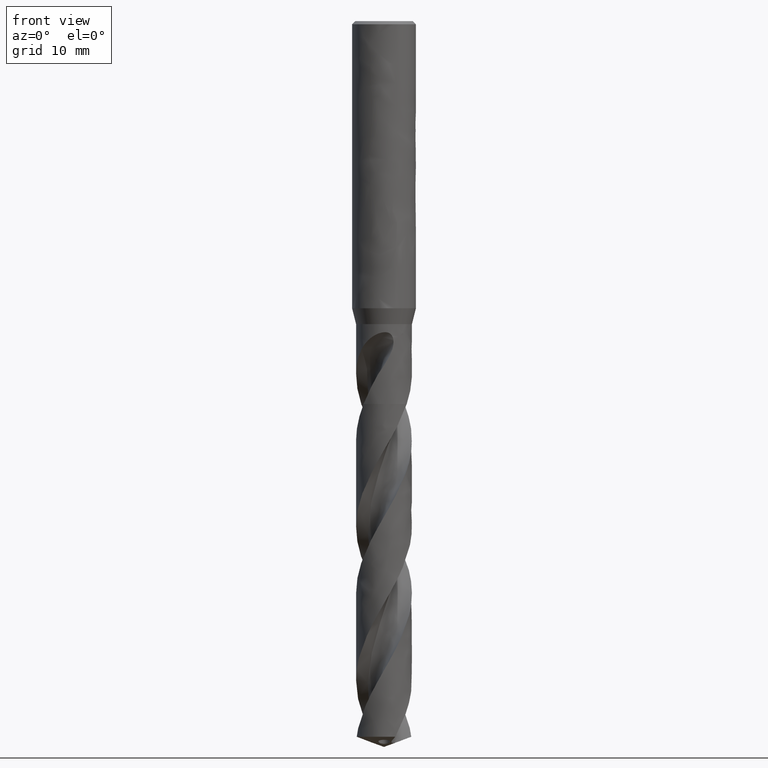
[diagram: clean part render]
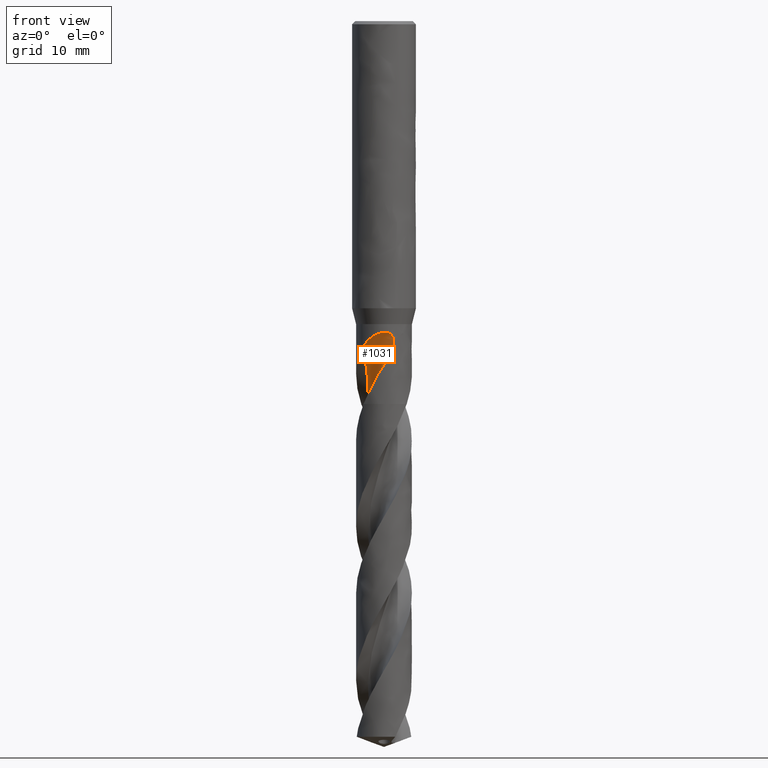
[diagram: same view with one face highlighted and labeled with its STEP entity id]
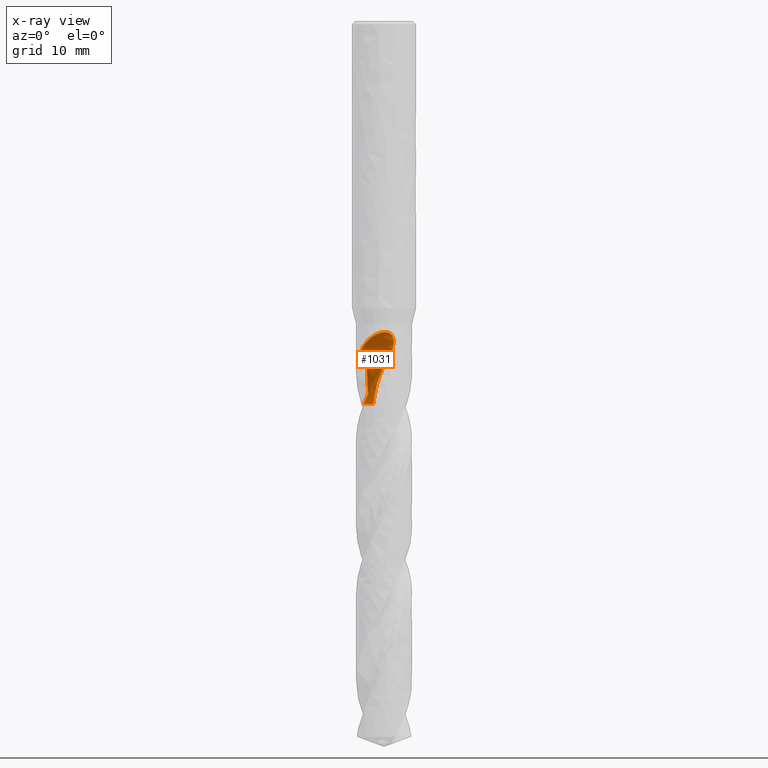
[diagram: x-ray of the same camera — body ghosted, the highlighted face saturated]
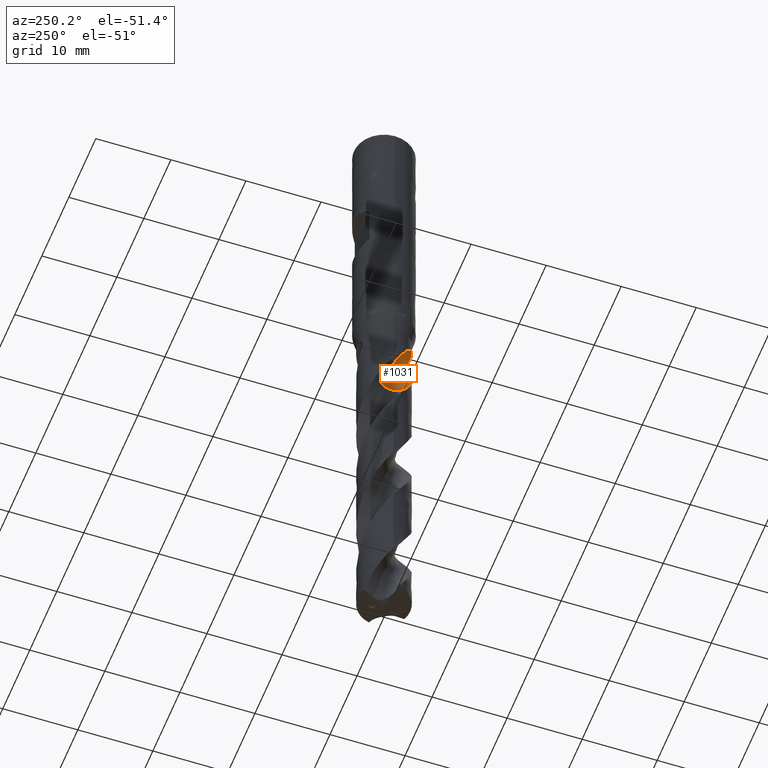
[diagram: same view with one face highlighted and labeled with its STEP entity id]
A machine part, front view. The second image highlights one B-rep face of the part: STEP entity #1031.
The next image is the same camera in x-ray: the body ghosted, the highlighted face saturated — about 0% of this face is hidden behind the body in this view.
A second angle (auxiliary view) of the same face is appended — the face is thin or edge-on in the first view.
In plain terms, the highlighted face is a freeform B-spline surface patch.
Its self-contained STEP definition (entity closure, byte-faithful):
#1031 = ADVANCED_FACE('', (#1032), #1370, .T.);
#1032 = FACE_OUTER_BOUND('', #1033, .T.);
#1033 = EDGE_LOOP('', (#1034, #1108, #1141, #1152, #1275, #1283, #1352));
#1034 = ORIENTED_EDGE('', *, *, #1035, .T.);
#1035 = EDGE_CURVE('', #1036, #1038, #1040, .T.);
#1036 = VERTEX_POINT('', #1037);
#1037 = CARTESIAN_POINT('', (-1.87105878399884, 0.973985460120105, -48.));
#1038 = VERTEX_POINT('', #1039);
#1039 = CARTESIAN_POINT('', (-2.55478292554754, -2.39229684682539, -48.));
#1040 = B_SPLINE_CURVE_WITH_KNOTS('', 3, (#1041, #1042, #1043, #1044, #1045, #1046, #1047, #1048, #1049, #1050, #1051, #1052, #1053, #1054, #1055, #1056, #1057, #1058, #1059, #1060, #1061, #1062, #1063, #1064, #1065, #1066, #1067, #1068, #1069, #1070, #1071, #1072, #1073, #1074, #1075, #1076, #1077, #1078, #1079, #1080, #1081, #1082, #1083, #1084, #1085, #1086, #1087, #1088, #1089, #1090, #1091, #1092, #1093, #1094, #1095, #1096, #1097, #1098, #1099, #1100, #1101, #1102, #1103, #1104, #1105, #1106, #1107), .UNSPECIFIED., .F., .U., (4, 3, 3, 3, 3, 3, 3, 3, 3, 3, 3, 3, 3, 3, 3, 3, 3, 3, 3, 3, 3, 3, 4), (0., 0.198185660012881, 0.396141605212709, 0.593873296694534, 0.791385044629832, 0.988680093004827, 1.18576068233785, 1.38262809298229, 1.57928267078664, 1.77572383617321, 1.97195007706195, 2.01083276721158, 2.04973939964569, 2.24790031997675, 2.44583216438928, 2.64354026674945, 2.84102882016284, 3.03830095921687, 3.2353588205243, 3.43220358407801, 3.62883549710774, 3.82525388143031, 4.00806983014479), .UNSPECIFIED.);
#1041 = CARTESIAN_POINT('', (-1.87105878399883, 0.973985460120107, -48.));
#1042 = CARTESIAN_POINT('', (-1.82612948131788, 0.925554781504893, -48.));
#1043 = CARTESIAN_POINT('', (-1.78342599912703, 0.87496037252041, -48.));
#1044 = CARTESIAN_POINT('', (-1.74322934676003, 0.822535168572179, -48.));
#1045 = CARTESIAN_POINT('', (-1.70307928588953, 0.770170730099732, -48.));
#1046 = CARTESIAN_POINT('', (-1.66534231888975, 0.71586508683488, -48.));
#1047 = CARTESIAN_POINT('', (-1.63026619866022, 0.659974769300595, -48.));
#1048 = CARTESIAN_POINT('', (-1.59522981429397, 0.604147766922087, -48.));
#1049 = CARTESIAN_POINT('', (-1.56277169465028, 0.546617721774219, -48.));
#1050 = CARTESIAN_POINT('', (-1.53310445389079, 0.487761479541577, -48.));
#1051 = CARTESIAN_POINT('', (-1.50347021299135, 0.428970705067567, -48.));
#1052 = CARTESIAN_POINT('', (-1.47655603486923, 0.368728535440033, -48.));
#1053 = CARTESIAN_POINT('', (-1.45253782721882, 0.307428705928024, -48.));
#1054 = CARTESIAN_POINT('', (-1.42854597108973, 0.246196131383079, -48.));
#1055 = CARTESIAN_POINT('', (-1.40739153750378, 0.183775038910559, -48.));
#1056 = CARTESIAN_POINT('', (-1.38921248645845, 0.120572511674599, -48.));
#1057 = CARTESIAN_POINT('', (-1.37105319597934, 0.0574386853693143, -48.));
#1058 = CARTESIAN_POINT('', (-1.35582339795609, -0.00661189344720524, -48.));
#1059 = CARTESIAN_POINT('', (-1.34362219903751, -0.0711624209400119, -48.));
#1060 = CARTESIAN_POINT('', (-1.33143419794624, -0.135643125235897, -48.));
#1061 = CARTESIAN_POINT('', (-1.32224183890544, -0.200762334896169, -48.));
#1062 = CARTESIAN_POINT('', (-1.31610481130052, -0.266097206819748, -48.));
#1063 = CARTESIAN_POINT('', (-1.30997441842001, -0.331361445385052, -48.));
#1064 = CARTESIAN_POINT('', (-1.30687949266754, -0.396981911024945, -48.));
#1065 = CARTESIAN_POINT('', (-1.30684008718142, -0.462533425115666, -48.));
#1066 = CARTESIAN_POINT('', (-1.3068007244587, -0.52801380174665, -48.));
#1067 = CARTESIAN_POINT('', (-1.30981015464197, -0.593566569497235, -48.));
#1068 = CARTESIAN_POINT('', (-1.31584892077979, -0.658767908261805, -48.));
#1069 = CARTESIAN_POINT('', (-1.32188107995833, -0.723897910832842, -48.));
#1070 = CARTESIAN_POINT('', (-1.33094891429165, -0.788817385899805, -48.));
#1071 = CARTESIAN_POINT('', (-1.34299392527057, -0.853107524255361, -48.));
#1072 = CARTESIAN_POINT('', (-1.34538067246412, -0.865846766051125, -48.));
#1073 = CARTESIAN_POINT('', (-1.347884683431, -0.878564595572162, -48.));
#1074 = CARTESIAN_POINT('', (-1.35050532291457, -0.891257786360692, -48.));
#1075 = CARTESIAN_POINT('', (-1.35312757607497, -0.903958793068947, -48.));
#1076 = CARTESIAN_POINT('', (-1.35586682339431, -0.916636205745398, -48.));
#1077 = CARTESIAN_POINT('', (-1.3587223690815, -0.929286804224075, -48.));
#1078 = CARTESIAN_POINT('', (-1.37326635621222, -0.993719372154971, -48.));
#1079 = CARTESIAN_POINT('', (-1.39085271744433, -1.05753945061112, -48.));
#1080 = CARTESIAN_POINT('', (-1.41136575495431, -1.12032717762797, -48.));
#1081 = CARTESIAN_POINT('', (-1.43185507919679, -1.18304232143207, -48.));
#1082 = CARTESIAN_POINT('', (-1.45530915614775, -1.24486479624366, -48.));
#1083 = CARTESIAN_POINT('', (-1.48157404118666, -1.30538882026863, -48.));
#1084 = CARTESIAN_POINT('', (-1.5078092364134, -1.36584442796882, -48.));
#1085 = CARTESIAN_POINT('', (-1.53690617682193, -1.42513657030635, -48.));
#1086 = CARTESIAN_POINT('', (-1.56867431076911, -1.48287695163951, -48.));
#1087 = CARTESIAN_POINT('', (-1.6004071671517, -1.54055321400255, -48.));
#1088 = CARTESIAN_POINT('', (-1.63487443046013, -1.59680686149634, -48.));
#1089 = CARTESIAN_POINT('', (-1.67185087980195, -1.65127031353934, -48.));
#1090 = CARTESIAN_POINT('', (-1.70878680915182, -1.70567408276589, -48.));
#1091 = CARTESIAN_POINT('', (-1.74830673434617, -1.7584098886994, -48.));
#1092 = CARTESIAN_POINT('', (-1.79015298340739, -1.80913389112922, -48.));
#1093 = CARTESIAN_POINT('', (-1.83195377891398, -1.85980279695497, -48.));
#1094 = CARTESIAN_POINT('', (-1.87616653569077, -1.90857421820115, -48.));
#1095 = CARTESIAN_POINT('', (-1.9225036091341, -1.95513085196337, -48.));
#1096 = CARTESIAN_POINT('', (-1.96879057381141, -2.00163713952773, -48.));
#1097 = CARTESIAN_POINT('', (-2.0172974696841, -2.04603412881639, -48.));
#1098 = CARTESIAN_POINT('', (-2.06770939589123, -2.08803359998146, -48.));
#1099 = CARTESIAN_POINT('', (-2.11806681109834, -2.12998765663163, -48.));
#1100 = CARTESIAN_POINT('', (-2.17043392425201, -2.16964002767551, -48.));
#1101 = CARTESIAN_POINT('', (-2.22447150805107, -2.20673385024622, -48.));
#1102 = CARTESIAN_POINT('', (-2.27845041075799, -2.24378739148184, -48.));
#1103 = CARTESIAN_POINT('', (-2.33421251591738, -2.27836782864358, -48.));
#1104 = CARTESIAN_POINT('', (-2.39139738674109, -2.31025163965196, -48.));
#1105 = CARTESIAN_POINT('', (-2.44462207061072, -2.33992742167325, -48.));
#1106 = CARTESIAN_POINT('', (-2.49918595568339, -2.36732663012836, -48.));
#1107 = CARTESIAN_POINT('', (-2.55478295803653, -2.3922967744874, -48.));
#1108 = ORIENTED_EDGE('', *, *, #1109, .F.);
#1109 = EDGE_CURVE('', #1110, #1038, #1112, .T.);
#1110 = VERTEX_POINT('', #1111);
#1111 = CARTESIAN_POINT('', (-1.59928233939166, -3.11324525196939, -45.867325914511));
#1112 = B_SPLINE_CURVE_WITH_KNOTS('', 3, (#1113, #1114, #1115, #1116, #1117, #1118, #1119, #1120, #1121, #1122, #1123, #1124, #1125, #1126, #1127, #1128, #1129, #1130, #1131, #1132, #1133, #1134, #1135, #1136, #1137, #1138, #1139, #1140), .UNSPECIFIED., .F., .U., (4, 3, 3, 3, 3, 3, 3, 3, 3, 4), (0., 0.197093816770112, 0.394180000558387, 0.837666373944045, 1.13329458139888, 1.57669277679801, 1.77374746256078, 2.06933356528086, 2.36491962118588, 2.4485456006945), .UNSPECIFIED.);
#1113 = CARTESIAN_POINT('', (-1.59928233939166, -3.11324525196939, -45.867325914511));
#1114 = CARTESIAN_POINT('', (-1.62714405050113, -3.09893261710889, -45.9250761761223));
#1115 = CARTESIAN_POINT('', (-1.6548872512009, -3.08420822305507, -45.9827832279353));
#1116 = CARTESIAN_POINT('', (-1.68250783582263, -3.06906620690976, -46.0404377319309));
#1117 = CARTESIAN_POINT('', (-1.71012735076382, -3.05392477717926, -46.0980900031027));
#1118 = CARTESIAN_POINT('', (-1.73762814422913, -3.03836345164842, -46.1556905721649));
#1119 = CARTESIAN_POINT('', (-1.76499062264873, -3.02238450597571, -46.2132392727676));
#1120 = CARTESIAN_POINT('', (-1.82656209401166, -2.98642843573931, -46.3427362473033));
#1121 = CARTESIAN_POINT('', (-1.88744090991785, -2.94835077017312, -46.4719934139944));
#1122 = CARTESIAN_POINT('', (-1.94739054795253, -2.90820736085739, -46.6010201518225));
#1123 = CARTESIAN_POINT('', (-1.98735300247951, -2.88144774692262, -46.6870294308149));
#1124 = CARTESIAN_POINT('', (-2.02690688203095, -2.85376813342415, -46.7729483507401));
#1125 = CARTESIAN_POINT('', (-2.0659877848012, -2.82518928092479, -46.8587772678428));
#1126 = CARTESIAN_POINT('', (-2.12460330702109, -2.78232526691919, -46.9875078354841));
#1127 = CARTESIAN_POINT('', (-2.18216663618878, -2.73742888590566, -47.1160618124492));
#1128 = CARTESIAN_POINT('', (-2.23848989647738, -2.69056926752889, -47.2444227438227));
#1129 = CARTESIAN_POINT('', (-2.26352103659583, -2.66974395188708, -47.3014688104474));
#1130 = CARTESIAN_POINT('', (-2.28831013684844, -2.64852881903253, -47.3584806514927));
#1131 = CARTESIAN_POINT('', (-2.31284052764313, -2.62693142158135, -47.4154571186994));
#1132 = CARTESIAN_POINT('', (-2.34963662099731, -2.59453487888164, -47.5009229974894));
#1133 = CARTESIAN_POINT('', (-2.38585349885642, -2.56127461552716, -47.5863172080262));
#1134 = CARTESIAN_POINT('', (-2.42140769237691, -2.52720889269129, -47.6716596403394));
#1135 = CARTESIAN_POINT('', (-2.45696188026632, -2.49314317525076, -47.7570020591361));
#1136 = CARTESIAN_POINT('', (-2.49185697159016, -2.45826787792066, -47.8423022498849));
#1137 = CARTESIAN_POINT('', (-2.52599357267561, -2.42267547781404, -47.9276004054819));
#1138 = CARTESIAN_POINT('', (-2.53565135810167, -2.41260582377416, -47.9517326054609));
#1139 = CARTESIAN_POINT('', (-2.54524872461322, -2.40247861577604, -47.9758657003163));
#1140 = CARTESIAN_POINT('', (-2.55478292554754, -2.39229684682539, -48.));
#1141 = ORIENTED_EDGE('', *, *, #1142, .T.);
#1142 = EDGE_CURVE('', #1110, #1143, #1145, .T.);
#1143 = VERTEX_POINT('', #1144);
#1144 = CARTESIAN_POINT('', (-0.723210420443898, -3.42446589817468, -44.2361576450141));
#1145 = (
   BOUNDED_CURVE ()
   B_SPLINE_CURVE (3, (#1146, #1147, #1148, #1149, #1150, #1151), .UNSPECIFIED., .F., .U.)
   B_SPLINE_CURVE_WITH_KNOTS ((4, 1, 1, 4), (45.182674085489, 45.6240740740741, 46.2666666666667, 46.8138423549859), .UNSPECIFIED.)
   CURVE ()
   GEOMETRIC_REPRESENTATION_ITEM ()
   RATIONAL_B_SPLINE_CURVE ((1., 1., 1., 1., 1., 1.))
   REPRESENTATION_ITEM ('')
);
#1146 = CARTESIAN_POINT('', (-1.59928233939165, -3.11324525196939, -45.867325914511));
#1147 = CARTESIAN_POINT('', (-1.51893539192548, -3.14103764636793, -45.7201925849826));
#1148 = CARTESIAN_POINT('', (-1.3182707190317, -3.19819180584944, -45.3588617245901));
#1149 = CARTESIAN_POINT('', (-1.01590630037895, -3.25151255243485, -44.8151389680911));
#1150 = CARTESIAN_POINT('', (-0.816284106162359, -3.36155477628375, -44.4185495411205));
#1151 = CARTESIAN_POINT('', (-0.723210420443898, -3.42446589817468, -44.2361576450141));
#1152 = ORIENTED_EDGE('', *, *, #1153, .F.);
#1153 = EDGE_CURVE('', #1154, #1143, #1156, .T.);
#1154 = VERTEX_POINT('', #1155);
#1155 = CARTESIAN_POINT('', (0.120032014846111, -3.4979411537949, -39.));
#1156 = B_SPLINE_CURVE_WITH_KNOTS('', 3, (#1157, #1158, #1159, #1160, #1161, #1162, #1163, #1164, #1165, #1166, #1167, #1168, #1169, #1170, #1171, #1172, #1173, #1174, #1175, #1176, #1177, #1178, #1179, #1180, #1181, #1182, #1183, #1184, #1185, #1186, #1187, #1188, #1189, #1190, #1191, #1192, #1193, #1194, #1195, #1196, #1197, #1198, #1199, #1200, #1201, #1202, #1203, #1204, #1205, #1206, #1207, #1208, #1209, #1210, #1211, #1212, #1213, #1214, #1215, #1216, #1217, #1218, #1219, #1220, #1221, #1222, #1223, #1224, #1225, #1226, #1227, #1228, #1229, #1230, #1231, #1232, #1233, #1234, #1235, #1236, #1237, #1238, #1239, #1240, #1241, #1242, #1243, #1244, #1245, #1246, #1247, #1248, #1249, #1250, #1251, #1252, #1253, #1254, #1255, #1256, #1257, #1258, #1259, #1260, #1261, #1262, #1263, #1264, #1265, #1266, #1267, #1268, #1269, #1270, #1271, #1272, #1273, #1274), .UNSPECIFIED., .F., .U., (4, 3, 3, 3, 3, 3, 3, 3, 3, 3, 3, 3, 3, 3, 3, 3, 3, 3, 3, 3, 3, 3, 3, 3, 3, 3, 3, 3, 3, 3, 3, 3, 3, 3, 3, 3, 3, 3, 3, 4), (0., 0.131917330217055, 0.263598794659899, 0.394995037223465, 0.526069242722832, 0.61332751385161, 0.700496570653888, 0.787595407274289, 0.874649723910369, 0.961688489422414, 1.04873968997006, 1.13582668400651, 1.22296616414469, 1.35354804115679, 1.48433915272312, 1.54263777435659, 1.58153245398859, 1.77824311970316, 1.97533877144389, 2.17271792988226, 2.37029293949605, 2.56799392280355, 2.76576691186751, 2.96357319501825, 3.16138212838387, 3.35916941590668, 3.55691999776634, 3.75462195539595, 3.9522648770393, 4.24900858100944, 4.54551555067818, 4.84177804021572, 5.03903426239406, 5.07796360736854, 5.11690070883443, 5.41363596447097, 5.71020385901692, 6.00658920824824, 6.30281517311314, 6.38772883873351), .UNSPECIFIED.);
#1157 = CARTESIAN_POINT('', (0.120032014848795, -3.4979411537948, -39.));
#1158 = CARTESIAN_POINT('', (0.163978572974783, -3.49643312559032, -39.0000407293484));
#1159 = CARTESIAN_POINT('', (0.207951668955339, -3.49409132834699, -39.00189613228));
#1160 = CARTESIAN_POINT('', (0.251634535186498, -3.49094257482151, -39.005829111829));
#1161 = CARTESIAN_POINT('', (0.295239297251612, -3.48779945120977, -39.0097550592824));
#1162 = CARTESIAN_POINT('', (0.338669771925236, -3.48384267820905, -39.0157646427837));
#1163 = CARTESIAN_POINT('', (0.381506169387032, -3.4791454471924, -39.024110098881));
#1164 = CARTESIAN_POINT('', (0.424249783268107, -3.47445839037197, -39.0324374787314));
#1165 = CARTESIAN_POINT('', (0.466541655431482, -3.46901745249328, -39.0431231434028));
#1166 = CARTESIAN_POINT('', (0.507851464830663, -3.46295926768845, -39.0563567494381));
#1167 = CARTESIAN_POINT('', (0.549060028642588, -3.45691593079716, -39.0695579214285));
#1168 = CARTESIAN_POINT('', (0.589454042232267, -3.45023371043598, -39.085354126488));
#1169 = CARTESIAN_POINT('', (0.628417523557257, -3.4431223353355, -39.1037990190429));
#1170 = CARTESIAN_POINT('', (0.654356158886948, -3.43838817506153, -39.1160780897369));
#1171 = CARTESIAN_POINT('', (0.679726786272182, -3.43345349906144, -39.1295585630908));
#1172 = CARTESIAN_POINT('', (0.704341062317732, -3.42839666140514, -39.1442066503737));
#1173 = CARTESIAN_POINT('', (0.728930172312758, -3.42334499394487, -39.1588397612054));
#1174 = CARTESIAN_POINT('', (0.752819424781753, -3.41816030074563, -39.1746716245931));
#1175 = CARTESIAN_POINT('', (0.775831655602053, -3.41292912937945, -39.1916228394728));
#1176 = CARTESIAN_POINT('', (0.798825348616705, -3.40770217205227, -39.2085603990782));
#1177 = CARTESIAN_POINT('', (0.820996898445579, -3.40241694582499, -39.2266552212643));
#1178 = CARTESIAN_POINT('', (0.842195073823296, -3.39716167669853, -39.2457845556437));
#1179 = CARTESIAN_POINT('', (0.863382413896295, -3.39190909376753, -39.2649041121926));
#1180 = CARTESIAN_POINT('', (0.883646892308865, -3.38667450919417, -39.2851014578162));
#1181 = CARTESIAN_POINT('', (0.902874616900423, -3.38154068823058, -39.3062199080148));
#1182 = CARTESIAN_POINT('', (0.922098906708486, -3.37640778435749, -39.3273345856762));
#1183 = CARTESIAN_POINT('', (0.940330390952768, -3.37136431020877, -39.3494168502961));
#1184 = CARTESIAN_POINT('', (0.95749766321326, -3.36648157947488, -39.3722902701815));
#1185 = CARTESIAN_POINT('', (0.974667388123907, -3.36159815115607, -39.3951669579418));
#1186 = CARTESIAN_POINT('', (0.990809056760843, -3.35686541194018, -39.4188820068771));
#1187 = CARTESIAN_POINT('', (1.00589210183776, -3.35233964261727, -39.4432543135339));
#1188 = CARTESIAN_POINT('', (1.02098134872236, -3.34781201240017, -39.4676366415332));
#1189 = CARTESIAN_POINT('', (1.0350401785232, -3.34348297300647, -39.49272185901));
#1190 = CARTESIAN_POINT('', (1.04807217619559, -3.33939286599937, -39.5183367138197));
#1191 = CARTESIAN_POINT('', (1.06111202806898, -3.33530029394253, -39.5439670063409));
#1192 = CARTESIAN_POINT('', (1.07314600600743, -3.33144006106073, -39.5701692638012));
#1193 = CARTESIAN_POINT('', (1.08420286228906, -3.32783775947787, -39.5967863284424));
#1194 = CARTESIAN_POINT('', (1.10077198853148, -3.32243957140621, -39.6366730279716));
#1195 = CARTESIAN_POINT('', (1.11518696957829, -3.31760910418266, -39.6775891984801));
#1196 = CARTESIAN_POINT('', (1.12760781113489, -3.31338205226436, -39.7190919683314));
#1197 = CARTESIAN_POINT('', (1.1400485549115, -3.30914822723677, -39.7606612390919));
#1198 = CARTESIAN_POINT('', (1.15052294679162, -3.3055078188578, -39.8029223610356));
#1199 = CARTESIAN_POINT('', (1.15922169678995, -3.30245439903285, -39.8455335101339));
#1200 = CARTESIAN_POINT('', (1.16309906375139, -3.30109337254617, -39.8645269358254));
#1201 = CARTESIAN_POINT('', (1.16662660917158, -3.29984754870377, -39.883603363694));
#1202 = CARTESIAN_POINT('', (1.16982134592088, -3.29871460096624, -39.9027383231577));
#1203 = CARTESIAN_POINT('', (1.17195275587348, -3.29795874022621, -39.9155044589128));
#1204 = CARTESIAN_POINT('', (1.17393644709481, -3.29725295334373, -39.9282991334245));
#1205 = CARTESIAN_POINT('', (1.17577738027917, -3.29659635867418, -39.9411158531458));
#1206 = CARTESIAN_POINT('', (1.18508793883516, -3.29327561723154, -40.0059366844911));
#1207 = CARTESIAN_POINT('', (1.19076736165235, -3.29121269107379, -40.0714221779842));
#1208 = CARTESIAN_POINT('', (1.19340752109279, -3.29025507956437, -40.1369322271292));
#1209 = CARTESIAN_POINT('', (1.19605284763735, -3.28929559389603, -40.2025704871844));
#1210 = CARTESIAN_POINT('', (1.19565522114364, -3.28944044430511, -40.2684028777341));
#1211 = CARTESIAN_POINT('', (1.19270542858238, -3.29050965059063, -40.3340264639674));
#1212 = CARTESIAN_POINT('', (1.18975139297497, -3.29158039484588, -40.3997444446028));
#1213 = CARTESIAN_POINT('', (1.18423317931475, -3.29357837211198, -40.4653725553408));
#1214 = CARTESIAN_POINT('', (1.17654050015391, -3.29632408168517, -40.5306566235711));
#1215 = CARTESIAN_POINT('', (1.1688401878657, -3.29907251571241, -40.5960054704821));
#1216 = CARTESIAN_POINT('', (1.15895003847352, -3.30257325451006, -40.6610953581646));
#1217 = CARTESIAN_POINT('', (1.14717676430096, -3.30665774936687, -40.7257639549374));
#1218 = CARTESIAN_POINT('', (1.13539598349668, -3.31074484849485, -40.7904737843642));
#1219 = CARTESIAN_POINT('', (1.12171731504971, -3.31542023766747, -40.8548248463748));
#1220 = CARTESIAN_POINT('', (1.10638767669807, -3.32052801657367, -40.918713546336));
#1221 = CARTESIAN_POINT('', (1.09105245505499, -3.32563765581196, -40.9826255155501));
#1222 = CARTESIAN_POINT('', (1.07405358054217, -3.33118354276062, -41.0461224455169));
#1223 = CARTESIAN_POINT('', (1.05559310987832, -3.33702310246384, -41.1091393306363));
#1224 = CARTESIAN_POINT('', (1.0371295314872, -3.34286364522753, -41.1721668243309));
#1225 = CARTESIAN_POINT('', (1.0171925523887, -3.3490013856445, -41.2347506083941));
#1226 = CARTESIAN_POINT('', (0.99595074337014, -3.3553065607751, -41.2968514211456));
#1227 = CARTESIAN_POINT('', (0.974708649753144, -3.36161182038265, -41.3589530659258));
#1228 = CARTESIAN_POINT('', (0.952151444833926, -3.36808746080764, -41.420600306122));
#1229 = CARTESIAN_POINT('', (0.928425717125101, -3.37461489473699, -41.4817728455114));
#1230 = CARTESIAN_POINT('', (0.904702585676031, -3.38114161438207, -41.54293869091));
#1231 = CARTESIAN_POINT('', (0.879802691812217, -3.38772239682055, -41.6036529718584));
#1232 = CARTESIAN_POINT('', (0.853856361724754, -3.39424944774879, -41.6639093511022));
#1233 = CARTESIAN_POINT('', (0.827914846796365, -3.40077528737707, -41.7241545478763));
#1234 = CARTESIAN_POINT('', (0.800918716397917, -3.40724955967666, -41.7839602252999));
#1235 = CARTESIAN_POINT('', (0.772984171604875, -3.41357517427824, -41.843329243492));
#1236 = CARTESIAN_POINT('', (0.745056495543744, -3.41989923349558, -41.9026836636346));
#1237 = CARTESIAN_POINT('', (0.71618353254251, -3.42607634304849, -41.9616166792043));
#1238 = CARTESIAN_POINT('', (0.686474147844868, -3.43201882925208, -42.0201396261929));
#1239 = CARTESIAN_POINT('', (0.656773634697353, -3.43795954096372, -42.0786450975836));
#1240 = CARTESIAN_POINT('', (0.62623066692973, -3.44366704203281, -42.1367532175925));
#1241 = CARTESIAN_POINT('', (0.594950779382482, -3.4490627089272, -42.1944832629183));
#1242 = CARTESIAN_POINT('', (0.547986741341746, -3.45716383476726, -42.2811599186664));
#1243 = CARTESIAN_POINT('', (0.499347661069798, -3.46456225133288, -42.3670127958843));
#1244 = CARTESIAN_POINT('', (0.449369515138695, -3.47103256090518, -42.4521269062537));
#1245 = CARTESIAN_POINT('', (0.399431240454411, -3.47749770863514, -42.5371731148305));
#1246 = CARTESIAN_POINT('', (0.348138567595743, -3.48303838406564, -42.6215094658222));
#1247 = CARTESIAN_POINT('', (0.295820758732069, -3.48747617607679, -42.705245001198));
#1248 = CARTESIAN_POINT('', (0.243546087690042, -3.49191030897673, -42.7889114937627));
#1249 = CARTESIAN_POINT('', (0.190235747790372, -3.49524430710511, -42.8720021578162));
#1250 = CARTESIAN_POINT('', (0.136217422260296, -3.49734825458843, -42.9546458427361));
#1251 = CARTESIAN_POINT('', (0.100251172064075, -3.4987490958926, -43.0096713071465));
#1252 = CARTESIAN_POINT('', (0.0639650746836311, -3.49960593109211, -43.0645051552447));
#1253 = CARTESIAN_POINT('', (0.0274531356814152, -3.49989233053551, -43.1191872503836));
#1254 = CARTESIAN_POINT('', (0.0202473509745623, -3.49994885267007, -43.1299789918155));
#1255 = CARTESIAN_POINT('', (0.0130326969664321, -3.49998318819525, -43.1407649548741));
#1256 = CARTESIAN_POINT('', (0.00580990693428299, -3.49999517785116, -43.1515454637455));
#1257 = CARTESIAN_POINT('', (-0.00141432220527914, -3.50000716989596, -43.1623281205833));
#1258 = CARTESIAN_POINT('', (-0.00864671617488423, -3.49999680719645, -43.1731053591826));
#1259 = CARTESIAN_POINT('', (-0.0158865370360294, -3.49996394523443, -43.1838775099865));
#1260 = CARTESIAN_POINT('', (-0.0710603946965972, -3.49971350793083, -43.2659708554644));
#1261 = CARTESIAN_POINT('', (-0.126673222719064, -3.49815188036258, -43.3477760893203));
#1262 = CARTESIAN_POINT('', (-0.182388846526199, -3.49524452773559, -43.4294513684702));
#1263 = CARTESIAN_POINT('', (-0.238073046269673, -3.49233881487906, -43.5110805821004));
#1264 = CARTESIAN_POINT('', (-0.293866422505859, -3.48808847600459, -43.5925982579725));
#1265 = CARTESIAN_POINT('', (-0.349432642753618, -3.48251300473928, -43.6741691539692));
#1266 = CARTESIAN_POINT('', (-0.404964660535958, -3.47694096532271, -43.7556898409408));
#1267 = CARTESIAN_POINT('', (-0.460280479643622, -3.4700446192969, -43.8372787065969));
#1268 = CARTESIAN_POINT('', (-0.515064989529324, -3.461893709599, -43.9190876008214));
#1269 = CARTESIAN_POINT('', (-0.56982003846353, -3.45374718313929, -44.0008525014449));
#1270 = CARTESIAN_POINT('', (-0.624054627723166, -3.44434619714852, -44.0828535263447));
#1271 = CARTESIAN_POINT('', (-0.677475761048173, -3.43380642919664, -44.1652250994566));
#1272 = CARTESIAN_POINT('', (-0.692789017785439, -3.43078518717962, -44.1888370479198));
#1273 = CARTESIAN_POINT('', (-0.708036199002321, -3.42767053077871, -44.2124802047181));
#1274 = CARTESIAN_POINT('', (-0.723210420443901, -3.42446589817468, -44.2361576450141));
#1275 = ORIENTED_EDGE('', *, *, #1276, .T.);
#1276 = EDGE_CURVE('', #1154, #1277, #1279, .T.);
#1277 = VERTEX_POINT('', #1278);
#1278 = CARTESIAN_POINT('', (0.117067700198145, -3.49804161690085, -39.));
#1279 = LINE('', #1280, #1281);
#1280 = CARTESIAN_POINT('', (0.120032014846111, -3.4979411537949, -39.));
#1281 = VECTOR('', #1282, 0.00296601654880799);
#1282 = DIRECTION('', (-0.00296431464796593, -0.00010046310595202, 0.));
#1283 = ORIENTED_EDGE('', *, *, #1284, .T.);
#1284 = EDGE_CURVE('', #1277, #1285, #1287, .T.);
#1285 = VERTEX_POINT('', #1286);
#1286 = CARTESIAN_POINT('', (-2.78569859101521, -2.11893448695703, -41.0798050784931));
#1287 = B_SPLINE_CURVE_WITH_KNOTS('', 3, (#1288, #1289, #1290, #1291, #1292, #1293, #1294, #1295, #1296, #1297, #1298, #1299, #1300, #1301, #1302, #1303, #1304, #1305, #1306, #1307, #1308, #1309, #1310, #1311, #1312, #1313, #1314, #1315, #1316, #1317, #1318, #1319, #1320, #1321, #1322, #1323, #1324, #1325, #1326, #1327, #1328, #1329, #1330, #1331, #1332, #1333, #1334, #1335, #1336, #1337, #1338, #1339, #1340, #1341, #1342, #1343, #1344, #1345, #1346, #1347, #1348, #1349, #1350, #1351), .UNSPECIFIED., .F., .U., (4, 3, 3, 3, 3, 3, 3, 3, 3, 3, 3, 3, 3, 3, 3, 3, 3, 3, 3, 3, 3, 4), (0., 0.0874134557683897, 0.113340613028456, 0.139294935765409, 0.271087132458191, 0.402681183958827, 0.534115095253041, 0.665419948831523, 0.862123997133755, 1.0585511873978, 1.2547757857741, 1.45085097727193, 1.64681554959066, 1.84269837946913, 2.13554282431516, 2.42825260128092, 2.72089121083935, 3.0135064927092, 3.30614601800451, 3.5988510164127, 3.89165338681153, 4.03471091196192), .UNSPECIFIED.);
#1288 = CARTESIAN_POINT('', (0.117067700144587, -3.49804161690266, -39.));
#1289 = CARTESIAN_POINT('', (0.0879461977384034, -3.49901621574533, -39.0000269602484));
#1290 = CARTESIAN_POINT('', (0.0588020634000712, -3.4996269732301, -39.0008476051146));
#1291 = CARTESIAN_POINT('', (0.0297061284617605, -3.49987393286281, -39.0023896988724));
#1292 = CARTESIAN_POINT('', (0.0210761655556717, -3.49994718201168, -39.002847089637));
#1293 = CARTESIAN_POINT('', (0.0124490186627822, -3.49998848187302, -39.0033680268296));
#1294 = CARTESIAN_POINT('', (0.00382630327517801, -3.49999790848555, -39.0039507119874));
#1295 = CARTESIAN_POINT('', (-0.00480544666153654, -3.50000734497492, -39.0045340076603));
#1296 = CARTESIAN_POINT('', (-0.013433317458024, -3.49998484223459, -39.0051792184799));
#1297 = CARTESIAN_POINT('', (-0.0220557844665162, -3.49993050536315, -39.0058845836698));
#1298 = CARTESIAN_POINT('', (-0.0658393915163858, -3.49965459079891, -39.0094663233591));
#1299 = CARTESIAN_POINT('', (-0.109519157265695, -3.49855592165082, -39.0146009697409));
#1300 = CARTESIAN_POINT('', (-0.152928583363317, -3.49665738218523, -39.0210760379349));
#1301 = CARTESIAN_POINT('', (-0.19627274483002, -3.4947616971107, -39.027541371079));
#1302 = CARTESIAN_POINT('', (-0.239404864596702, -3.49206656526302, -39.0353514299132));
#1303 = CARTESIAN_POINT('', (-0.282202062613751, -3.4886045915031, -39.0443250059781));
#1304 = CARTESIAN_POINT('', (-0.324947179613106, -3.48514683070864, -39.053287661866));
#1305 = CARTESIAN_POINT('', (-0.367404650589349, -3.48092070005282, -39.0634207085033));
#1306 = CARTESIAN_POINT('', (-0.409482273750836, -3.47596378972564, -39.0745711796438));
#1307 = CARTESIAN_POINT('', (-0.451518580011113, -3.47101174669273, -39.0857107019026));
#1308 = CARTESIAN_POINT('', (-0.493213904241277, -3.46532611674192, -39.0978758017075));
#1309 = CARTESIAN_POINT('', (-0.534497721745611, -3.45894668728087, -39.1109376554191));
#1310 = CARTESIAN_POINT('', (-0.596343828809881, -3.44938984633671, -39.1305052451417));
#1311 = CARTESIAN_POINT('', (-0.657350180110336, -3.43826227930884, -39.15210984505));
#1312 = CARTESIAN_POINT('', (-0.717341450399671, -3.42570010998314, -39.1753994162417));
#1313 = CARTESIAN_POINT('', (-0.777248283863512, -3.41315562172494, -39.1986562077065));
#1314 = CARTESIAN_POINT('', (-0.836227390301315, -3.39916363372244, -39.2236266333617));
#1315 = CARTESIAN_POINT('', (-0.894152982579224, -3.38385733206125, -39.2500352327049));
#1316 = CARTESIAN_POINT('', (-0.952018831320235, -3.36856681707676, -39.2764165946377));
#1317 = CARTESIAN_POINT('', (-1.00890070735869, -3.35194735084874, -39.3042643703767));
#1318 = CARTESIAN_POINT('', (-1.06470498686969, -3.3341270658052, -39.3333599436768));
#1319 = CARTESIAN_POINT('', (-1.12046677658443, -3.31632034926012, -39.3624333633895));
#1320 = CARTESIAN_POINT('', (-1.17520755438043, -3.29729737741998, -39.3927817013559));
#1321 = CARTESIAN_POINT('', (-1.22885560839283, -3.27718078441234, -39.4242289439464));
#1322 = CARTESIAN_POINT('', (-1.28247339593628, -3.25707554052534, -39.4556584450362));
#1323 = CARTESIAN_POINT('', (-1.33504531442638, -3.23586098240743, -39.4882126280629));
#1324 = CARTESIAN_POINT('', (-1.38651531882238, -3.21365450393642, -39.5217478703158));
#1325 = CARTESIAN_POINT('', (-1.43796385360421, -3.19145728842412, -39.5552691240578));
#1326 = CARTESIAN_POINT('', (-1.48834981258295, -3.16825252378584, -39.5897958493407));
#1327 = CARTESIAN_POINT('', (-1.53762888409309, -3.14415289303854, -39.6252094550464));
#1328 = CARTESIAN_POINT('', (-1.61130099893781, -3.10812399253937, -39.6781527258236));
#1329 = CARTESIAN_POINT('', (-1.6825861547943, -3.07005146987088, -39.7331398805315));
#1330 = CARTESIAN_POINT('', (-1.75137328513907, -3.03029563179918, -39.7898536895696));
#1331 = CARTESIAN_POINT('', (-1.82012878293216, -2.99055807590607, -39.8465414181115));
#1332 = CARTESIAN_POINT('', (-1.8864765026868, -2.94908828296671, -39.9050273683322));
#1333 = CARTESIAN_POINT('', (-1.95033963840391, -2.90623042700858, -39.9650656433859));
#1334 = CARTESIAN_POINT('', (-2.014187246885, -2.86338299120972, -40.0250893211534));
#1335 = CARTESIAN_POINT('', (-2.07562258548418, -2.81910065789665, -40.0867317906802));
#1336 = CARTESIAN_POINT('', (-2.13459598525379, -2.77371591547123, -40.1498002061559));
#1337 = CARTESIAN_POINT('', (-2.19356468395847, -2.72833479089082, -40.2128635941326));
#1338 = CARTESIAN_POINT('', (-2.25012927156664, -2.68180741907429, -40.2774160462047));
#1339 = CARTESIAN_POINT('', (-2.30426508767638, -2.63445675723018, -40.3433021072135));
#1340 = CARTESIAN_POINT('', (-2.35840538898462, -2.58710217234338, -40.4091936269385));
#1341 = CARTESIAN_POINT('', (-2.41016569368293, -2.53888160914725, -40.4764750910394));
#1342 = CARTESIAN_POINT('', (-2.45955179591767, -2.49010139616806, -40.5450084773193));
#1343 = CARTESIAN_POINT('', (-2.50894894745221, -2.4413102694465, -40.6135571967779));
#1344 = CARTESIAN_POINT('', (-2.55601008549459, -2.39192063967256, -40.6834129559335));
#1345 = CARTESIAN_POINT('', (-2.60076158848812, -2.34222952757511, -40.7544599539295));
#1346 = CARTESIAN_POINT('', (-2.64552797863068, -2.29252188510569, -40.8255305866008));
#1347 = CARTESIAN_POINT('', (-2.68801525861977, -2.24247716608732, -40.8978450995831));
#1348 = CARTESIAN_POINT('', (-2.72826996058065, -2.19238295518671, -40.9713028645835));
#1349 = CARTESIAN_POINT('', (-2.74793762252733, -2.1679079011561, -41.0071928952883));
#1350 = CARTESIAN_POINT('', (-2.76707782541893, -2.14341463997945, -41.0433643225069));
#1351 = CARTESIAN_POINT('', (-2.78569859101521, -2.11893448695703, -41.0798050784931));
#1352 = ORIENTED_EDGE('', *, *, #1353, .F.);
#1353 = EDGE_CURVE('', #1036, #1285, #1354, .T.);
#1354 = B_SPLINE_CURVE_WITH_KNOTS('', 3, (#1355, #1356, #1357, #1358, #1359, #1360, #1361, #1362, #1363, #1364, #1365, #1366, #1367, #1368, #1369), .UNSPECIFIED., .F., .U., (4, 1, 1, 1, 1, 1, 1, 1, 1, 1, 1, 1, 4), (43.05, 43.0537037037037, 43.6962962962963, 44.3388888888889, 44.9814814814815, 45.6240740740741, 46.2666666666667, 46.9092592592593, 47.5518518518519, 48.1944444444444, 48.837037037037, 49.4796296296296, 49.9701949215069), .UNSPECIFIED.);
#1355 = CARTESIAN_POINT('', (-1.87105878399884, 0.973985460120105, -48.));
#1356 = CARTESIAN_POINT('', (-1.87126686381252, 0.973614014000244, -47.9987654320988));
#1357 = CARTESIAN_POINT('', (-1.90755979019955, 0.908785951727871, -47.7833333333333));
#1358 = CARTESIAN_POINT('', (-1.97402423713265, 0.775778267650794, -47.3537037037037));
#1359 = CARTESIAN_POINT('', (-2.03958266874713, 0.562814032276422, -46.7111111111111));
#1360 = CARTESIAN_POINT('', (-2.06934900622837, 0.342633375941318, -46.0685185185185));
#1361 = CARTESIAN_POINT('', (-2.05894738181305, 0.121018529797526, -45.4259259259259));
#1362 = CARTESIAN_POINT('', (-2.02277790258698, -0.0917578479146246, -44.7833333333333));
#1363 = CARTESIAN_POINT('', (-2.06368944166324, -0.308928443507262, -44.1407407407407));
#1364 = CARTESIAN_POINT('', (-2.15566823046324, -0.556142559884473, -43.4981481481482));
#1365 = CARTESIAN_POINT('', (-2.29529912258674, -0.854737304980618, -42.8555555555556));
#1366 = CARTESIAN_POINT('', (-2.46698261237254, -1.2247647671785, -42.212962962963));
#1367 = CARTESIAN_POINT('', (-2.63808413127428, -1.64695482440024, -41.6210461372755));
#1368 = CARTESIAN_POINT('', (-2.7429765644812, -1.96900166917127, -41.2433268424522));
#1369 = CARTESIAN_POINT('', (-2.78569859101521, -2.11893448695703, -41.0798050784931));
#1370 = (
   BOUNDED_SURFACE ()
   B_SPLINE_SURFACE (3, 2, ((#1371, #1372, #1373, #1374, #1375), (#1376, #1377, #1378, #1379, #1380), (#1381, #1382, #1383, #1384, #1385), (#1386, #1387, #1388, #1389, #1390), (#1391, #1392, #1393, #1394, #1395), (#1396, #1397, #1398, #1399, #1400), (#1401, #1402, #1403, #1404, #1405), (#1406, #1407, #1408, #1409, #1410), (#1411, #1412, #1413, #1414, #1415), (#1416, #1417, #1418, #1419, #1420), (#1421, #1422, #1423, #1424, #1425), (#1426, #1427, #1428, #1429, #1430), (#1431, #1432, #1433, #1434, #1435), (#1436, #1437, #1438, #1439, #1440), (#1441, #1442, #1443, #1444, #1445), (#1446, #1447, #1448, #1449, #1450), (#1451, #1452, #1453, #1454, #1455)), .UNSPECIFIED., .F., .F., .U.)
   B_SPLINE_SURFACE_WITH_KNOTS ((4, 1, 1, 1, 1, 1, 1, 1, 1, 1, 1, 1, 1, 1, 4), (3, 2, 3), (43.05, 43.0537037037037, 43.6962962962963, 44.3388888888889, 44.9814814814815, 45.6240740740741, 46.2666666666667, 46.9092592592593, 47.5518518518519, 48.1944444444444, 48.837037037037, 49.4796296296296, 50.1222222222222, 50.7648148148148, 52.05), (0., 0.5, 1.), .UNSPECIFIED.)
   GEOMETRIC_REPRESENTATION_ITEM ()
   RATIONAL_B_SPLINE_SURFACE (((1., 0.887010833178222, 1., 0.887010833178222, 1.), (1., 0.887010833178222, 1., 0.887010833178222, 1.), (1., 0.887010833178222, 1., 0.887010833178222, 1.), (1., 0.887010833178222, 1., 0.887010833178222, 1.), (1., 0.887010833178222, 1., 0.887010833178222, 1.), (1., 0.887010833178222, 1., 0.887010833178222, 1.), (1., 0.887010833178222, 1., 0.887010833178222, 1.), (1., 0.887010833178222, 1., 0.887010833178222, 1.), (1., 0.887010833178222, 1., 0.887010833178222, 1.), (1., 0.887010833178222, 1., 0.887010833178222, 1.), (1., 0.887010833178222, 1., 0.887010833178222, 1.), (1., 0.887010833178222, 1., 0.887010833178222, 1.), (1., 0.887010833178222, 1., 0.887010833178222, 1.), (1., 0.887010833178222, 1., 0.887010833178222, 1.), (1., 0.887010833178221, 1., 0.887010833178221, 1.), (1., 0.887010833178222, 1., 0.887010833178222, 1.), (1., 0.887010833178222, 1., 0.887010833178222, 1.)))
   REPRESENTATION_ITEM ('')
   SURFACE ()
);
#1371 = CARTESIAN_POINT('', (-2.59989194919718, -2.41192846483387, -48.));
#1372 = CARTESIAN_POINT('', (-1.58576267995032, -1.98454049861353, -48.));
#1373 = CARTESIAN_POINT('', (-1.35417775393032, -0.908674767932677, -48.));
#1374 = CARTESIAN_POINT('', (-1.12259282791032, 0.167190962748175, -48.));
#1375 = CARTESIAN_POINT('', (-1.87105878399883, 0.97398546012011, -48.));
#1376 = CARTESIAN_POINT('', (-2.5994214513698, -2.4124679109314, -47.9987654320988));
#1377 = CARTESIAN_POINT('', (-1.58537212695885, -1.98487270371682, -47.9987654320988));
#1378 = CARTESIAN_POINT('', (-1.35400281729703, -0.908953591460785, -47.9987654320988));
#1379 = CARTESIAN_POINT('', (-1.12263350763522, 0.166965520795245, -47.9987654320988));
#1380 = CARTESIAN_POINT('', (-1.87126686381252, 0.973614014000248, -47.9987654320988));
#1381 = CARTESIAN_POINT('', (-2.51729300499351, -2.50658039327677, -47.7833333333333));
#1382 = CARTESIAN_POINT('', (-1.5172040181276, -2.04282489531821, -47.7833333333333));
#1383 = CARTESIAN_POINT('', (-1.32346280521015, -0.957600731398815, -47.7833333333333));
#1384 = CARTESIAN_POINT('', (-1.12972159229269, 0.127623432520579, -47.7833333333333));
#1385 = CARTESIAN_POINT('', (-1.90755979019955, 0.908785951727873, -47.7833333333333));
#1386 = CARTESIAN_POINT('', (-2.34426891645826, -2.68700772932517, -47.3537037037037));
#1387 = CARTESIAN_POINT('', (-1.37548475648006, -2.15227496161243, -47.3537037037037));
#1388 = CARTESIAN_POINT('', (-1.25784043022662, -1.05198332118669, -47.3537037037037));
#1389 = CARTESIAN_POINT('', (-1.14019610397318, 0.0483083192390458, -47.3537037037037));
#1390 = CARTESIAN_POINT('', (-1.97402423713265, 0.775778267650795, -47.3537037037037));
#1391 = CARTESIAN_POINT('', (-2.04413366655716, -2.9112010483442, -46.7111111111111));
#1392 = CARTESIAN_POINT('', (-1.13907534384488, -2.27923771162046, -46.7111111111111));
#1393 = CARTESIAN_POINT('', (-1.13762927560666, -1.17537805778741, -46.7111111111111));
#1394 = CARTESIAN_POINT('', (-1.13618320736844, -0.0715184039543553, -46.7111111111111));
#1395 = CARTESIAN_POINT('', (-2.03958266874713, 0.562814032276422, -46.7111111111111));
#1396 = CARTESIAN_POINT('', (-1.71233856214719, -3.08280259702399, -46.0685185185185));
#1397 = CARTESIAN_POINT('', (-0.885820052626535, -2.36558443676164, -46.0685185185185));
#1398 = CARTESIAN_POINT('', (-0.999259233537583, -1.27716067359558, -46.0685185185185));
#1399 = CARTESIAN_POINT('', (-1.11269841444863, -0.188736910429514, -46.0685185185185));
#1400 = CARTESIAN_POINT('', (-2.06934900622837, 0.342633375941319, -46.0685185185185));
#1401 = CARTESIAN_POINT('', (-1.35556514529389, -3.19161508408887, -45.4259259259259));
#1402 = CARTESIAN_POINT('', (-0.621534351868604, -2.40480056305646, -45.4259259259259));
#1403 = CARTESIAN_POINT('', (-0.845032308583764, -1.35221946900804, -45.4259259259259));
#1404 = CARTESIAN_POINT('', (-1.06853026529893, -0.299638374959615, -45.4259259259259));
#1405 = CARTESIAN_POINT('', (-2.05894738181305, 0.121018529797526, -45.4259259259259));
#1406 = CARTESIAN_POINT('', (-0.998219175555735, -3.25463160561156, -44.7833333333333));
#1407 = CARTESIAN_POINT('', (-0.361703619435773, -2.41151424155684, -44.7833333333333));
#1408 = CARTESIAN_POINT('', (-0.687254607415449, -1.40651896943924, -44.7833333333333));
#1409 = CARTESIAN_POINT('', (-1.01280559539513, -0.401523697321636, -44.7833333333333));
#1410 = CARTESIAN_POINT('', (-2.02277790258698, -0.0917578479146236, -44.7833333333333));
#1411 = CARTESIAN_POINT('', (-0.677490575468344, -3.4421782495722, -44.1407407407407));
#1412 = CARTESIAN_POINT('', (-0.114595460481681, -2.51033095405871, -44.1407407407407));
#1413 = CARTESIAN_POINT('', (-0.555056703473262, -1.5147486189131, -44.1407407407407));
#1414 = CARTESIAN_POINT('', (-0.995517946464845, -0.519166283767503, -44.1407407407407));
#1415 = CARTESIAN_POINT('', (-2.06368944166323, -0.308928443507261, -44.1407407407407));
#1416 = CARTESIAN_POINT('', (-0.338061658868338, -3.72756608709953, -43.4981481481481));
#1417 = CARTESIAN_POINT('', (0.156144319840725, -2.67647321759593, -43.4981481481481));
#1418 = CARTESIAN_POINT('', (-0.421395648859409, -1.66876127747269, -43.4981481481481));
#1419 = CARTESIAN_POINT('', (-0.998935617559543, -0.661049337349445, -43.4981481481481));
#1420 = CARTESIAN_POINT('', (-2.15566823046324, -0.556142559884471, -43.4981481481481));
#1421 = CARTESIAN_POINT('', (0.0557822520025119, -4.11744991150121, -42.8555555555555));
#1422 = CARTESIAN_POINT('', (0.476522164777614, -2.9108646779374, -42.8555555555556));
#1423 = CARTESIAN_POINT('', (-0.270528096104901, -1.87414585985238, -42.8555555555555));
#1424 = CARTESIAN_POINT('', (-1.01757835698742, -0.837427041767356, -42.8555555555556));
#1425 = CARTESIAN_POINT('', (-2.29529912258674, -0.854737304980617, -42.8555555555555));
#1426 = CARTESIAN_POINT('', (0.544609185908717, -4.59846600648636, -42.212962962963));
#1427 = CARTESIAN_POINT('', (0.87385794423404, -3.19973283706715, -42.212962962963));
#1428 = CARTESIAN_POINT('', (-0.0830678614372773, -2.12774765688387, -42.212962962963));
#1429 = CARTESIAN_POINT('', (-1.0399936671086, -1.0557624767006, -42.212962962963));
#1430 = CARTESIAN_POINT('', (-2.46698261237253, -1.2247647671785, -42.212962962963));
#1431 = CARTESIAN_POINT('', (1.16530561710494, -5.15167576961245, -41.5703703703704));
#1432 = CARTESIAN_POINT('', (1.37227183806677, -3.52574671220581, -41.5703703703704));
#1433 = CARTESIAN_POINT('', (0.159099674287572, -2.42361531469924, -41.5703703703704));
#1434 = CARTESIAN_POINT('', (-1.05407248949162, -1.32148391719267, -41.5703703703704));
#1435 = CARTESIAN_POINT('', (-2.65273264321497, -1.68309977585448, -41.5703703703704));
#1436 = CARTESIAN_POINT('', (1.95148686525077, -5.74918457206331, -40.9277777777778));
#1437 = CARTESIAN_POINT('', (1.99261620386462, -3.86557809166465, -40.9277777777778));
#1438 = CARTESIAN_POINT('', (0.473246924281682, -2.75149461734405, -40.9277777777778));
#1439 = CARTESIAN_POINT('', (-1.04612235530126, -1.63741114302345, -40.9277777777778));
#1440 = CARTESIAN_POINT('', (-2.830200527684, -2.24299356542532, -40.9277777777778));
#1441 = CARTESIAN_POINT('', (3.25796463342093, -6.55789433503628, -40.070987654321));
#1442 = CARTESIAN_POINT('', (3.00395240401808, -4.29980163259978, -40.070987654321));
#1443 = CARTESIAN_POINT('', (1.0085357212927, -3.2126875043757, -40.070987654321));
#1444 = CARTESIAN_POINT('', (-0.986880961432687, -2.12557337615161, -40.070987654321));
#1445 = CARTESIAN_POINT('', (-3.02191671185594, -3.13657998344082, -40.070987654321));
#1446 = CARTESIAN_POINT('', (4.56188302400782, -7.11546865080346, -39.4283950617284));
#1447 = CARTESIAN_POINT('', (3.98682124831492, -4.5563934618101, -39.4283950617284));
#1448 = CARTESIAN_POINT('', (1.56070769177814, -3.5596312637042, -39.4283950617284));
#1449 = CARTESIAN_POINT('', (-0.865405864758639, -2.56286906559831, -39.4283950617284));
#1450 = CARTESIAN_POINT('', (-3.0734672249484, -3.97850563563363, -39.4283950617284));
#1451 = CARTESIAN_POINT('', (5.59166245437395, -7.4009708315632, -39.));
#1452 = CARTESIAN_POINT('', (4.74661472197016, -4.64934625766424, -39.));
#1453 = CARTESIAN_POINT('', (2.00791636024631, -3.76330181791164, -39.));
#1454 = CARTESIAN_POINT('', (-0.730782001477553, -2.87725737815905, -39.));
#1455 = CARTESIAN_POINT('', (-3.0274399621898, -4.61245352765411, -39.));